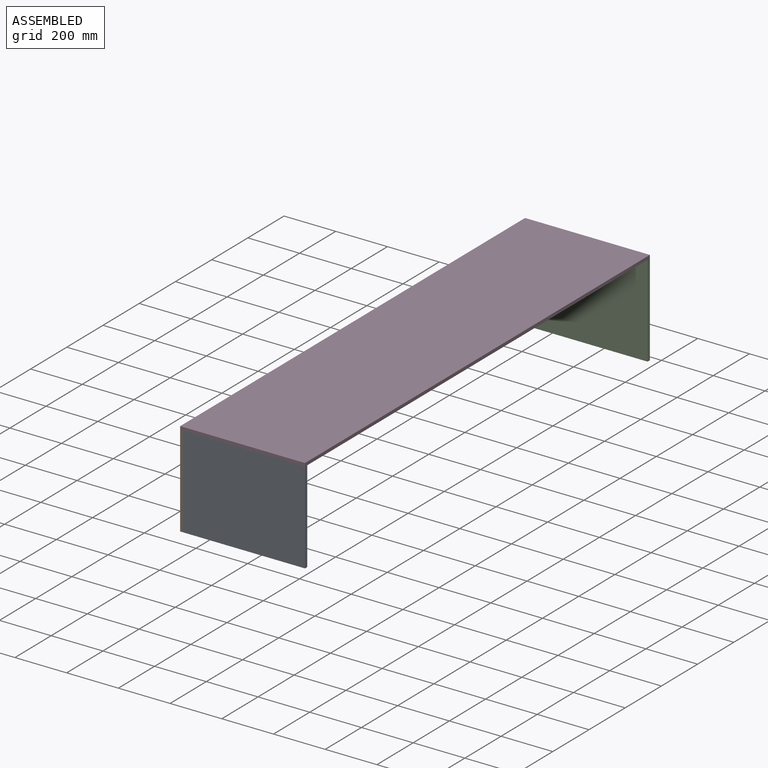
[diagram: assembled view]
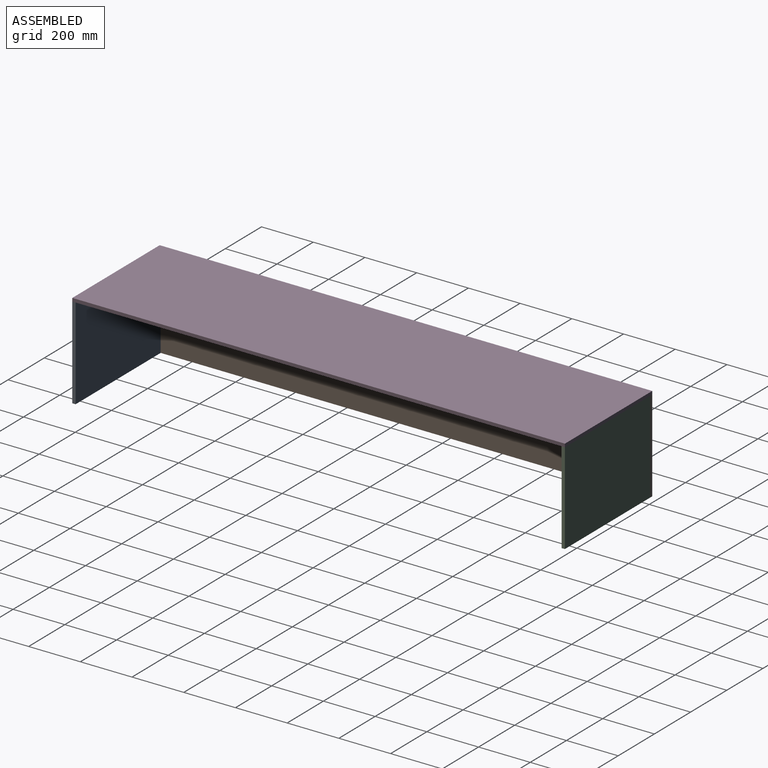
[diagram: assembled view, second angle]
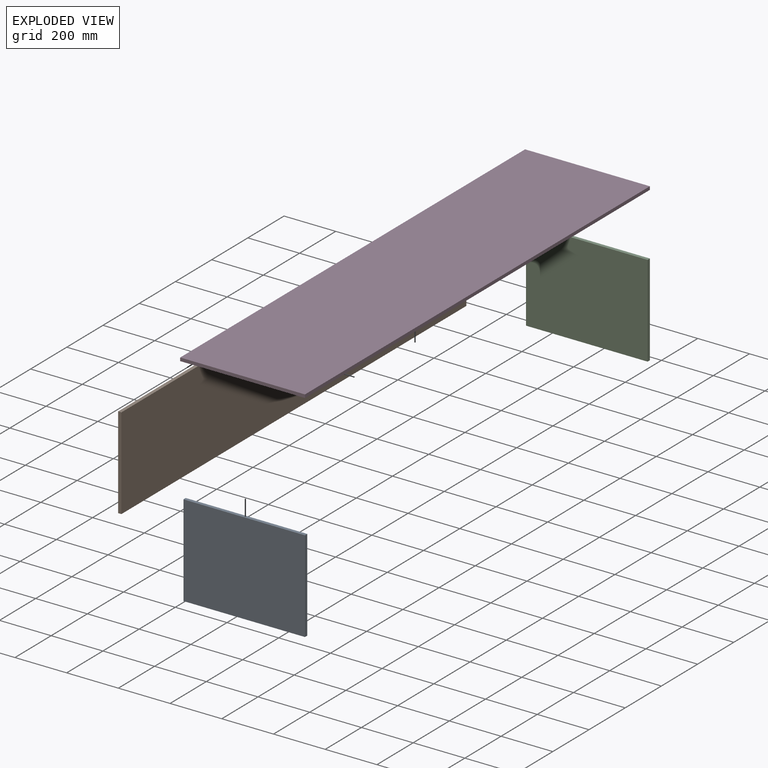
[diagram: exploded view]
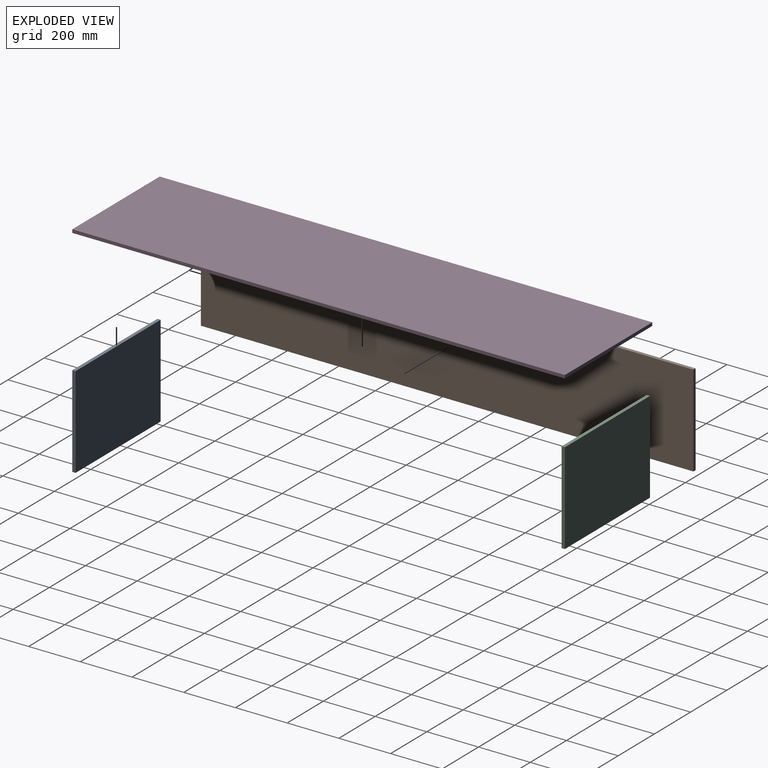
[diagram: exploded view, second angle]
ASSEMBLY  parts=4 mates=9
PART A: 6 faces, bbox 469.9x12.7x355.6 mm
  f0: plane 469.9x12.7mm, normal (0,0,1), area 5967.7mm2, adj f1,f3,f4,f5
  f1: plane 355.6x12.7mm, normal (-1,0,0), area 4516.1mm2, adj f0,f2,f4,f5
  f2: plane 469.9x12.7mm, normal (0,0,-1), area 5967.7mm2, adj f1,f3,f4,f5
  f3: plane 355.6x12.7mm, normal (1,0,0), area 4516.1mm2, adj f0,f2,f4,f5
  f4: plane 469.9x355.6mm, normal (0,-1,0), area 167096.4mm2, adj f0,f1,f2,f3
  f5: plane 469.9x355.6mm, normal (0,1,0), area 167096.4mm2, adj f0,f1,f2,f3
PART B: 6 faces, bbox 355.6x12.7x1905 mm
  f0: plane 355.6x12.7mm, normal (0,0,-1), area 4516.1mm2, adj f1,f3,f4,f5
  f1: plane 1905x12.7mm, normal (1,0,0), area 24193.5mm2, adj f0,f2,f4,f5
  f2: plane 355.6x12.7mm, normal (0,0,1), area 4516.1mm2, adj f1,f3,f4,f5
  f3: plane 1905x12.7mm, normal (-1,0,0), area 24193.5mm2, adj f0,f2,f4,f5
  f4: plane 1905x355.6mm, normal (0,-1,0), area 677418mm2, adj f0,f1,f2,f3
  f5: plane 1905x355.6mm, normal (0,1,0), area 677418mm2, adj f0,f1,f2,f3
PART C: same geometry as A
PART D: 6 faces, bbox 1905x12.7x482.6 mm
  f0: plane 1905x12.7mm, normal (0,0,-1), area 24193.5mm2, adj f1,f3,f4,f5
  f1: plane 482.6x12.7mm, normal (1,0,0), area 6129mm2, adj f0,f2,f4,f5
  f2: plane 1905x12.7mm, normal (0,0,1), area 24193.5mm2, adj f1,f3,f4,f5
  f3: plane 482.6x12.7mm, normal (-1,0,0), area 6129mm2, adj f0,f2,f4,f5
  f4: plane 1905x482.6mm, normal (0,-1,0), area 919353mm2, adj f0,f1,f2,f3
  f5: plane 1905x482.6mm, normal (0,1,0), area 919353mm2, adj f0,f1,f2,f3
PLACE A t=(-12.7,12.7,0)mm
PLACE B rot(axis=(-0.58,-0.58,-0.58),120deg) t=(-568.33,959.5,1090.68)mm
PLACE C t=(-12.7,1905,0)mm
PLACE D rot(axis=(-0.58,0.58,-0.58),120deg) t=(-37.12,950.98,355.6)mm
MATE planar C.f0 <-> D.f5  axis (0,0,1) through (-333.38,1898.65,355.6)mm
MATE planar D.f3 <-> C.f5  axis (0,1,0) through (-339.73,1905,361.95)mm
MATE planar D.f0 <-> B.f4  axis (-1,0,0) through (-581.03,952.5,361.95)mm
MATE planar B.f1 <-> D.f5  axis (0,0,1) through (-574.68,952.5,355.6)mm
MATE planar A.f0 <-> D.f5  axis (0,0,1) through (-333.38,6.35,355.6)mm
MATE planar D.f1 <-> A.f4  axis (0,-1,0) through (-339.73,0,361.95)mm
MATE planar B.f0 <-> D.f1  axis (0,-1,0) through (-574.68,0,177.8)mm
MATE planar A.f3 <-> D.f2  axis (1,0,0) through (-98.43,6.35,177.8)mm
MATE planar C.f3 <-> D.f2  axis (1,0,0) through (-98.43,1898.65,177.8)mm
